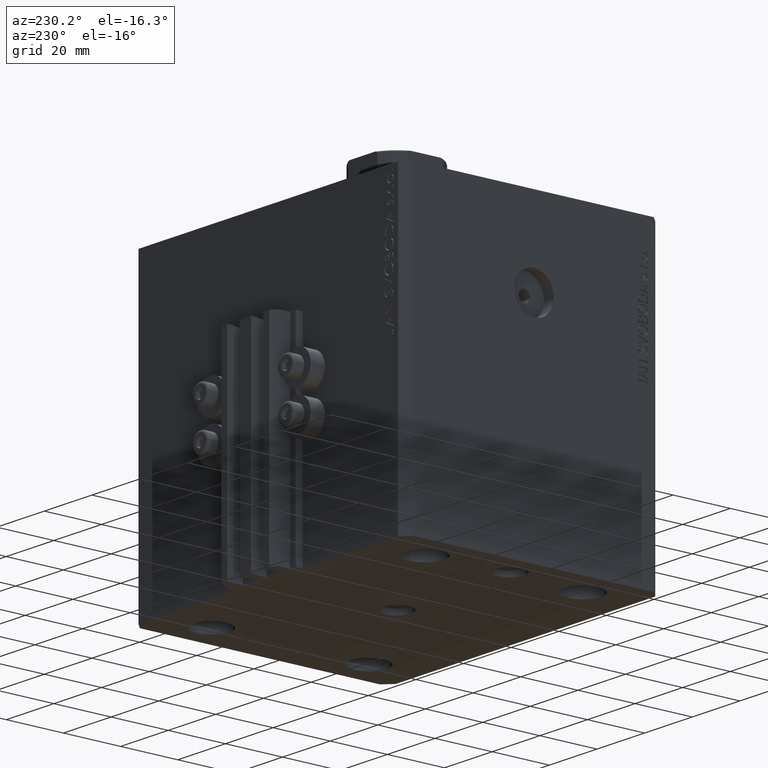
[diagram: clean part render]
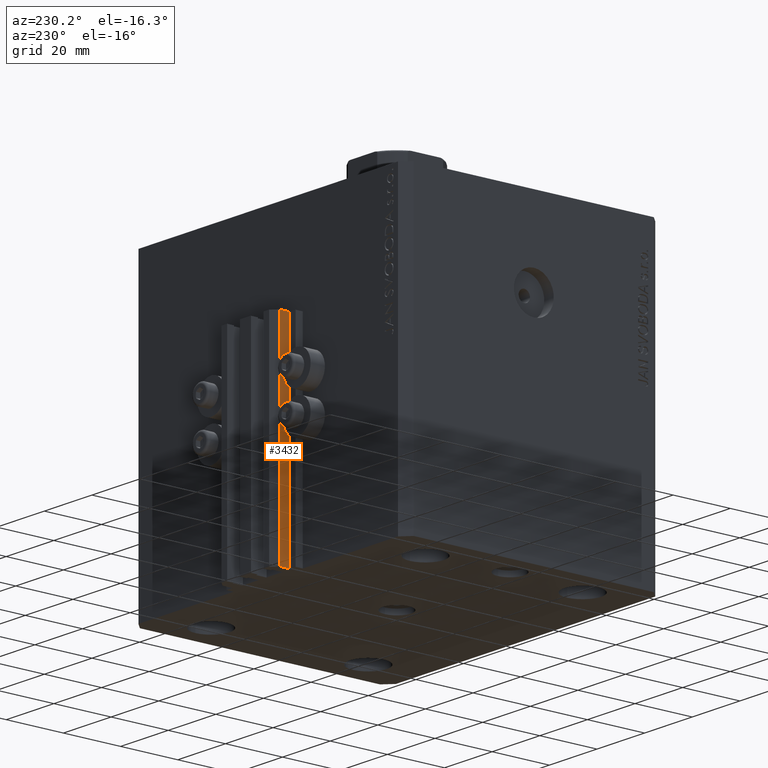
[diagram: same view with one face highlighted and labeled with its STEP entity id]
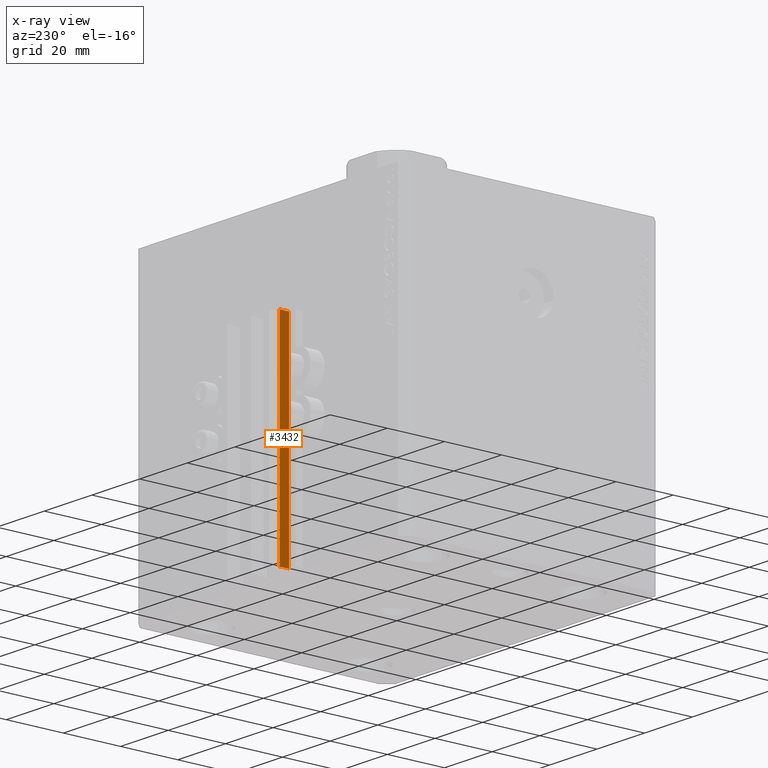
[diagram: x-ray of the same camera — body ghosted, the highlighted face saturated]
A machine part, auxiliary view. The second image highlights one B-rep face of the part: STEP entity #3432.
The next image is the same camera in x-ray: the body ghosted, the highlighted face saturated — about 0% of this face is hidden behind the body in this view.
In plain terms, the highlighted planar face has unit normal (-1, 0, 0).
Its self-contained STEP definition (entity closure, byte-faithful):
#257 = DIRECTION ( 'NONE',  ( -1.000000000000000000, 0.000000000000000000, 0.000000000000000000 ) ) ;
#3432 = ADVANCED_FACE ( 'NONE', ( #15299 ), #18428, .T. ) ;
#4485 = AXIS2_PLACEMENT_3D ( 'NONE', #33055, #257, #19142 ) ;
#6673 = CARTESIAN_POINT ( 'NONE',  ( -12.00000000000000000, 50.99999999999999289, -105.0000000000000000 ) ) ;
#6724 = CARTESIAN_POINT ( 'NONE',  ( -12.00000000000000000, 50.99999999999999289, -33.00000000000000000 ) ) ;
#9043 = VERTEX_POINT ( 'NONE', #36412 ) ;
#10637 = ORIENTED_EDGE ( 'NONE', *, *, #15455, .F. ) ;
#11316 = ORIENTED_EDGE ( 'NONE', *, *, #18299, .F. ) ;
#13409 = LINE ( 'NONE', #6724, #42165 ) ;
#13468 = EDGE_CURVE ( 'NONE', #25099, #9043, #14489, .T. ) ;
#13657 = DIRECTION ( 'NONE',  ( 0.000000000000000000, -1.000000000000000000, 0.000000000000000000 ) ) ;
#14489 = LINE ( 'NONE', #43925, #26952 ) ;
#15170 = LINE ( 'NONE', #43686, #30759 ) ;
#15299 = FACE_OUTER_BOUND ( 'NONE', #20043, .T. ) ;
#15455 = EDGE_CURVE ( 'NONE', #17832, #9043, #13409, .T. ) ;
#17832 = VERTEX_POINT ( 'NONE', #34437 ) ;
#18299 = EDGE_CURVE ( 'NONE', #45943, #17832, #15170, .T. ) ;
#18428 = PLANE ( 'NONE',  #4485 ) ;
#19142 = DIRECTION ( 'NONE',  ( 0.000000000000000000, 0.000000000000000000, 1.000000000000000000 ) ) ;
#20043 = EDGE_LOOP ( 'NONE', ( #10637, #11316, #30219, #44612 ) ) ;
#25099 = VERTEX_POINT ( 'NONE', #29051 ) ;
#25125 = DIRECTION ( 'NONE',  ( 0.000000000000000000, -1.000000000000000000, 0.000000000000000000 ) ) ;
#25306 = DIRECTION ( 'NONE',  ( 0.000000000000000000, 0.000000000000000000, 1.000000000000000000 ) ) ;
#26952 = VECTOR ( 'NONE', #25306, 1000.000000000000000 ) ;
#29051 = CARTESIAN_POINT ( 'NONE',  ( -12.00000000000000000, 47.69999999999999574, -105.0000000000000000 ) ) ;
#30219 = ORIENTED_EDGE ( 'NONE', *, *, #35512, .T. ) ;
#30403 = VECTOR ( 'NONE', #25125, 1000.000000000000000 ) ;
#30759 = VECTOR ( 'NONE', #47295, 1000.000000000000000 ) ;
#33055 = CARTESIAN_POINT ( 'NONE',  ( -12.00000000000000000, 50.99999999999999289, -105.0000000000000000 ) ) ;
#34437 = CARTESIAN_POINT ( 'NONE',  ( -12.00000000000000000, 50.99999999999999289, -33.00000000000000000 ) ) ;
#35512 = EDGE_CURVE ( 'NONE', #45943, #25099, #35875, .T. ) ;
#35875 = LINE ( 'NONE', #6673, #30403 ) ;
#36412 = CARTESIAN_POINT ( 'NONE',  ( -12.00000000000000000, 47.69999999999999574, -33.00000000000000000 ) ) ;
#42165 = VECTOR ( 'NONE', #13657, 1000.000000000000000 ) ;
#43653 = CARTESIAN_POINT ( 'NONE',  ( -12.00000000000000000, 50.99999999999999289, -105.0000000000000000 ) ) ;
#43686 = CARTESIAN_POINT ( 'NONE',  ( -12.00000000000000000, 50.99999999999999289, -105.0000000000000000 ) ) ;
#43925 = CARTESIAN_POINT ( 'NONE',  ( -12.00000000000000000, 47.69999999999999574, -105.0000000000000000 ) ) ;
#44612 = ORIENTED_EDGE ( 'NONE', *, *, #13468, .T. ) ;
#45943 = VERTEX_POINT ( 'NONE', #43653 ) ;
#47295 = DIRECTION ( 'NONE',  ( 0.000000000000000000, 0.000000000000000000, 1.000000000000000000 ) ) ;